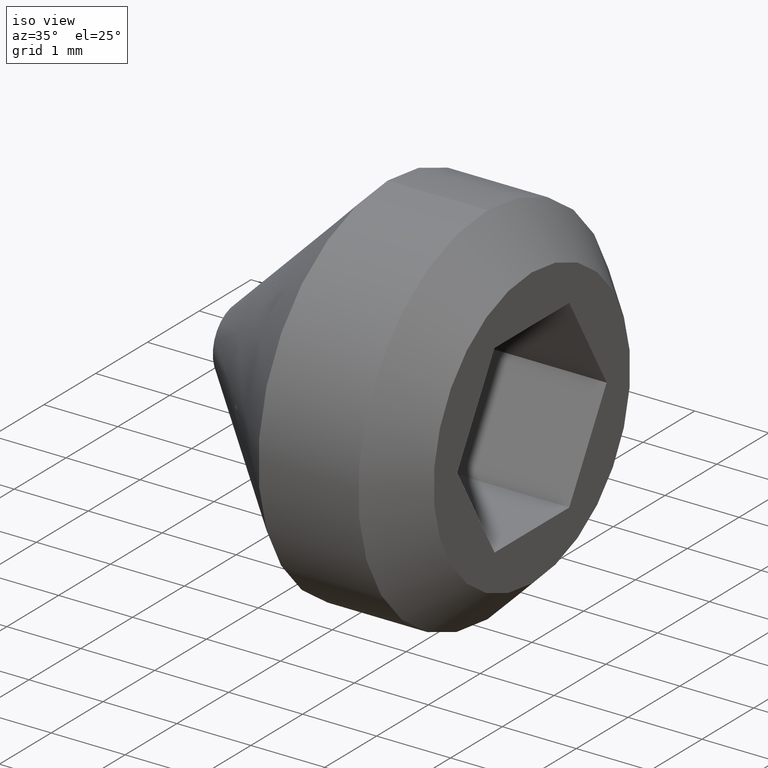
[diagram: clean part render]
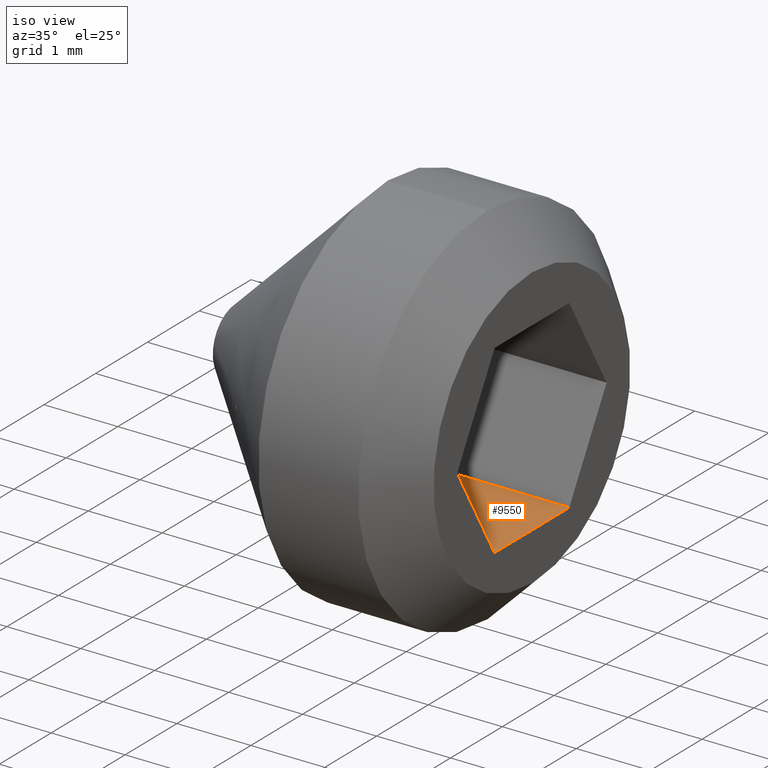
[diagram: same view with one face highlighted and labeled with its STEP entity id]
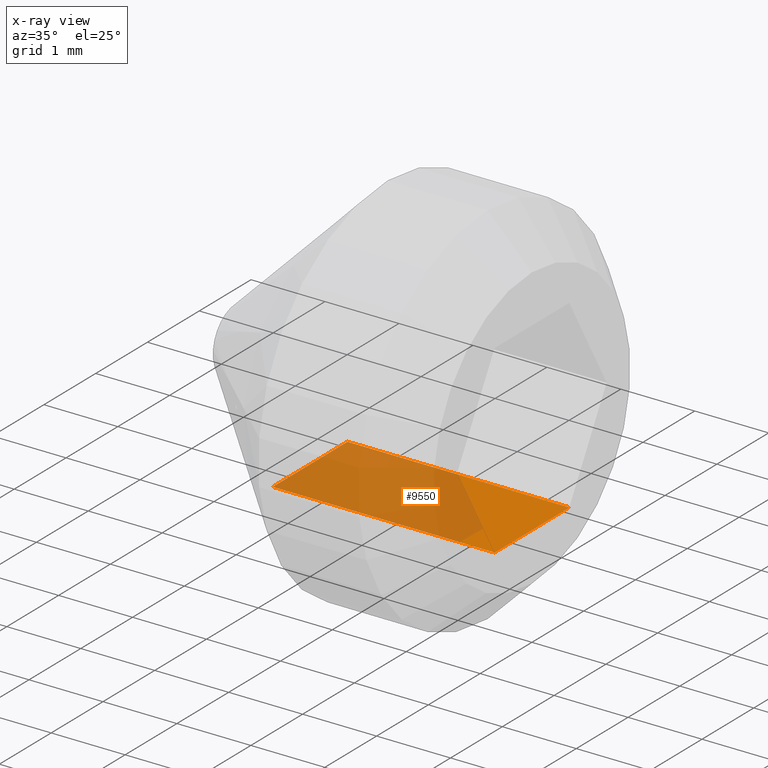
[diagram: x-ray of the same camera — body ghosted, the highlighted face saturated]
A machine part, iso view. The second image highlights one B-rep face of the part: STEP entity #9550.
The next image is the same camera in x-ray: the body ghosted, the highlighted face saturated — about 72% of this face is hidden behind the body in this view.
In plain terms, the highlighted planar face has unit normal (0, 0, -1).
Its self-contained STEP definition (entity closure, byte-faithful):
#722 = LINE ( 'NONE', #7268, #2412 ) ;
#801 = CARTESIAN_POINT ( 'NONE',  ( 4.000000000000000000, -0.7216878364870328300, -1.249999999999999800 ) ) ;
#1026 = ORIENTED_EDGE ( 'NONE', *, *, #10695, .F. ) ;
#1088 = FACE_OUTER_BOUND ( 'NONE', #2330, .T. ) ;
#1180 = VERTEX_POINT ( 'NONE', #801 ) ;
#1286 = PLANE ( 'NONE',  #8589 ) ;
#1535 = VERTEX_POINT ( 'NONE', #9177 ) ;
#1536 = ORIENTED_EDGE ( 'NONE', *, *, #5187, .T. ) ;
#1639 = CARTESIAN_POINT ( 'NONE',  ( 1.000000000000000000, -0.7216878364870328300, -1.250000000000000000 ) ) ;
#1783 = DIRECTION ( 'NONE',  ( 1.000000000000000000, -0.0000000000000000000, 6.123031769111886300E-017 ) ) ;
#2330 = EDGE_LOOP ( 'NONE', ( #1536, #10466, #1026, #10014 ) ) ;
#2335 = DIRECTION ( 'NONE',  ( 0.0000000000000000000, 1.000000000000000000, 0.0000000000000000000 ) ) ;
#2412 = VECTOR ( 'NONE', #8207, 1000.000000000000000 ) ;
#3415 = CARTESIAN_POINT ( 'NONE',  ( 1.000000000000000000, -0.7216878364870328300, -1.250000000000000000 ) ) ;
#4154 = VERTEX_POINT ( 'NONE', #9530 ) ;
#4225 = LINE ( 'NONE', #3415, #6959 ) ;
#5006 = VECTOR ( 'NONE', #8288, 1000.000000000000000 ) ;
#5187 = EDGE_CURVE ( 'NONE', #1180, #9100, #7492, .T. ) ;
#6505 = EDGE_CURVE ( 'NONE', #1535, #1180, #4225, .T. ) ;
#6925 = EDGE_CURVE ( 'NONE', #4154, #9100, #722, .T. ) ;
#6959 = VECTOR ( 'NONE', #1783, 1000.000000000000000 ) ;
#7207 = LINE ( 'NONE', #1639, #5006 ) ;
#7268 = CARTESIAN_POINT ( 'NONE',  ( 1.000000000000000000, 0.7216878364870323900, -1.250000000000000000 ) ) ;
#7492 = LINE ( 'NONE', #9756, #8937 ) ;
#8207 = DIRECTION ( 'NONE',  ( 1.000000000000000000, -0.0000000000000000000, 6.123031769111886300E-017 ) ) ;
#8288 = DIRECTION ( 'NONE',  ( 0.0000000000000000000, 1.000000000000000000, 0.0000000000000000000 ) ) ;
#8589 = AXIS2_PLACEMENT_3D ( 'NONE', #8775, #8742, #9579 ) ;
#8742 = DIRECTION ( 'NONE',  ( 6.123031769111886300E-017, 0.0000000000000000000, -1.000000000000000000 ) ) ;
#8775 = CARTESIAN_POINT ( 'NONE',  ( 1.000000000000000000, -0.7216878364870328300, -1.250000000000000000 ) ) ;
#8937 = VECTOR ( 'NONE', #2335, 1000.000000000000000 ) ;
#9100 = VERTEX_POINT ( 'NONE', #10306 ) ;
#9177 = CARTESIAN_POINT ( 'NONE',  ( 1.000000000000000000, -0.7216878364870328300, -1.250000000000000000 ) ) ;
#9530 = CARTESIAN_POINT ( 'NONE',  ( 1.000000000000000000, 0.7216878364870323900, -1.250000000000000000 ) ) ;
#9550 = ADVANCED_FACE ( 'NONE', ( #1088 ), #1286, .F. ) ;
#9579 = DIRECTION ( 'NONE',  ( -1.000000000000000000, 0.0000000000000000000, -6.123031769111886300E-017 ) ) ;
#9756 = CARTESIAN_POINT ( 'NONE',  ( 4.000000000000000000, -0.7216878364870328300, -1.249999999999999800 ) ) ;
#10014 = ORIENTED_EDGE ( 'NONE', *, *, #6505, .T. ) ;
#10306 = CARTESIAN_POINT ( 'NONE',  ( 4.000000000000000000, 0.7216878364870323900, -1.249999999999999800 ) ) ;
#10466 = ORIENTED_EDGE ( 'NONE', *, *, #6925, .F. ) ;
#10695 = EDGE_CURVE ( 'NONE', #1535, #4154, #7207, .T. ) ;